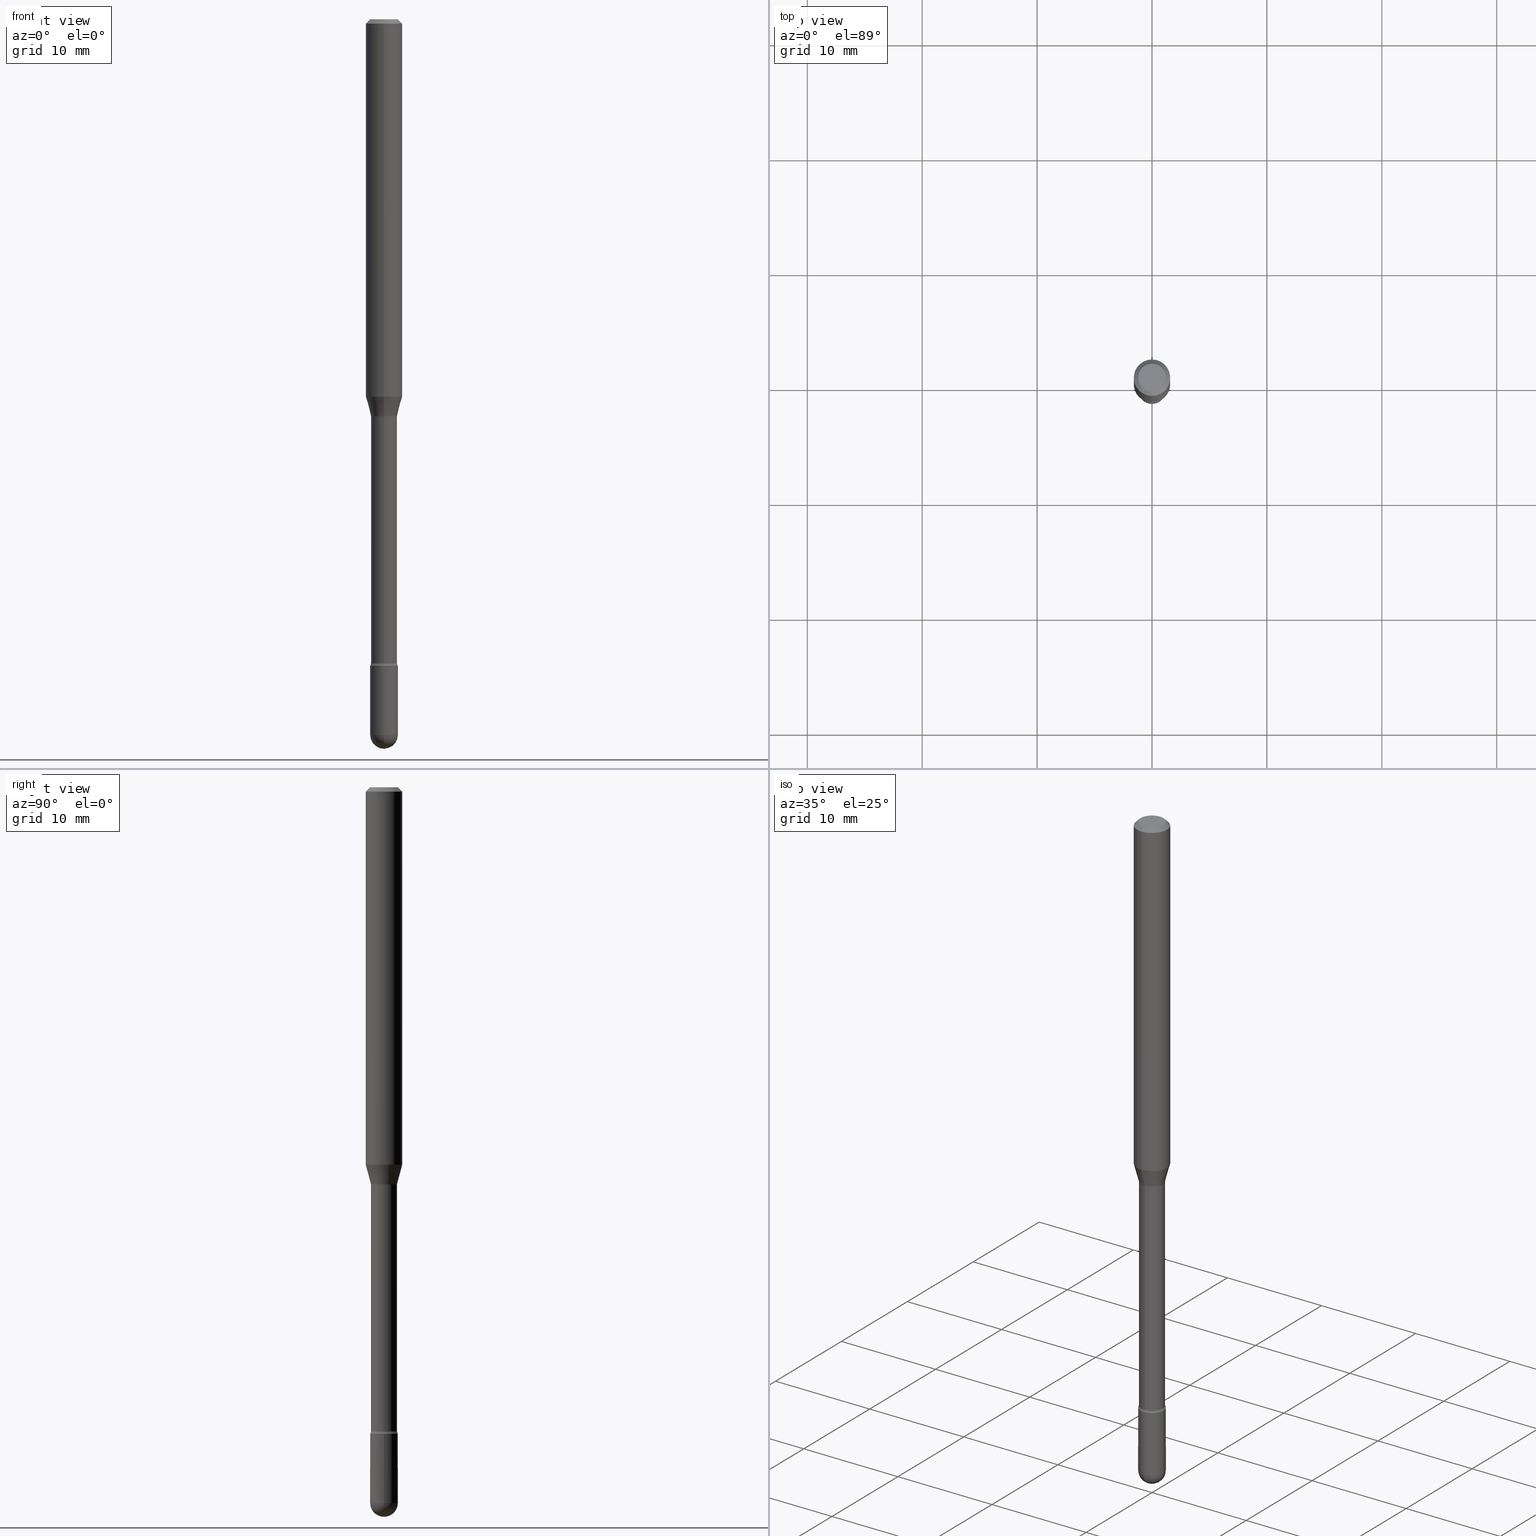
[diagram: canonical four-view strip — front | top / right | iso, engineering-drawing reading convention]
A machine part, canonical four-view strip (front | top / right | iso — engineering-drawing reading convention). The complete STEP part file that produces these views, byte-faithful:
ISO-10303-21;
HEADER;
FILE_DESCRIPTION (( 'STEP AP203' ),
    '1' );
FILE_NAME ('01633.STEP',
    '2024-04-09T20:11:30',
    ( '' ),
    ( '' ),
    'SwSTEP 2.0',
    'SolidWorks 2023',
    '' );
FILE_SCHEMA (( 'CONFIG_CONTROL_DESIGN' ));
ENDSEC;

DATA;
#1 = CARTESIAN_POINT ( 'NONE',  ( 3.208890050080175440E-16, 0.04516111260565924823, -1.358092501787273587 ) ) ;
#2 = ORIENTED_EDGE ( 'NONE', *, *, #251, .F. ) ;
#3 = VERTEX_POINT ( 'NONE', #565 ) ;
#4 = CARTESIAN_POINT ( 'NONE',  ( 3.668209281077304879E-31, -5.237213313102163933E-17, -0.01500000000000008271 ) ) ;
#5 = ORIENTED_EDGE ( 'NONE', *, *, #313, .F. ) ;
#6 = AXIS2_PLACEMENT_3D ( 'NONE', #121, #260, #476 ) ;
#7 = LOCAL_TIME ( 16, 11, 30.00000000000000000, #57 ) ;
#8 = ORIENTED_EDGE ( 'NONE', *, *, #251, .T. ) ;
#9 = PLANE ( 'NONE',  #198 ) ;
#10 = ORIENTED_EDGE ( 'NONE', *, *, #387, .T. ) ;
#11 = CARTESIAN_POINT ( 'NONE',  ( -0.04749999999999999362, -7.810736775039144241E-15, -2.215000000000000302 ) ) ;
#12 = CC_DESIGN_DATE_AND_TIME_ASSIGNMENT ( #456, #462, ( #183 ) ) ;
#13 = DIRECTION ( 'NONE',  ( -2.445472854051523017E-29, 3.491475542068089682E-15, 1.000000000000000000 ) ) ;
#14 = DIRECTION ( 'NONE',  ( -2.445472854051523017E-29, 3.491475542068089682E-15, 1.000000000000000000 ) ) ;
#15 = AXIS2_PLACEMENT_3D ( 'NONE', #157, #110, #241 ) ;
#16 = CONICAL_SURFACE ( 'NONE', #506, 0.06250000000000000000, 0.7853981633974483900 ) ;
#17 =( NAMED_UNIT ( * ) PLANE_ANGLE_UNIT ( ) SI_UNIT ( $, .RADIAN. ) );
#18 = CARTESIAN_POINT ( 'NONE',  ( -4.364351673553597698E-16, -0.06250000000000448253, -1.293382893084895402 ) ) ;
#19 = PERSON_AND_ORGANIZATION ( #294, #391 ) ;
#20 = CARTESIAN_POINT ( 'NONE',  ( 3.172573315168849951E-16, 0.04465000000000004382, 3.221790159379056922E-16 ) ) ;
#21 = APPROVAL_DATE_TIME ( #507, #232 ) ;
#22 = DIRECTION ( 'NONE',  ( -2.445472854051523017E-29, 3.491475542068089682E-15, 1.000000000000000000 ) ) ;
#23 = AXIS2_PLACEMENT_3D ( 'NONE', #528, #139, #320 ) ;
#24 = CLOSED_SHELL ( 'NONE', ( #299, #264, #448, #523, #274, #65, #111, #467, #558, #501, #98, #483, #86, #191 ) ) ;
#25 = AXIS2_PLACEMENT_3D ( 'NONE', #550, #170, #125 ) ;
#26 = AXIS2_PLACEMENT_3D ( 'NONE', #337, #335, #500 ) ;
#27 = SECURITY_CLASSIFICATION_LEVEL ( 'unclassified' ) ;
#28 = CARTESIAN_POINT ( 'NONE',  ( 5.416722371724124336E-29, -7.733618325680820029E-15, -2.215000000000000302 ) ) ;
#29 = PRODUCT_RELATED_PRODUCT_CATEGORY ( 'detail', '', ( #144 ) ) ;
#30 = ORIENTED_EDGE ( 'NONE', *, *, #166, .T. ) ;
#31 = DIRECTION ( 'NONE',  ( -2.445472854051523017E-29, 3.491475542068089682E-15, 1.000000000000000000 ) ) ;
#32 = ADVANCED_FACE ( 'NONE', ( #186 ), #366, .T. ) ;
#33 = FACE_OUTER_BOUND ( 'NONE', #258, .T. ) ;
#34 = ORIENTED_EDGE ( 'NONE', *, *, #330, .T. ) ;
#35 = ORIENTED_EDGE ( 'NONE', *, *, #364, .F. ) ;
#36 = CIRCLE ( 'NONE', #113, 0.04465000000000007851 ) ;
#37 = DIRECTION ( 'NONE',  ( -6.982962677686265922E-15, -1.000000000000000000, 3.491475542068089288E-15 ) ) ;
#38 = ADVANCED_FACE ( 'NONE', ( #488 ), #51, .T. ) ;
#39 = CARTESIAN_POINT ( 'NONE',  ( 5.997512247169047773E-29, -8.562857983512815004E-15, -2.452500000000000124 ) ) ;
#40 = ORIENTED_EDGE ( 'NONE', *, *, #218, .F. ) ;
#41 = ORIENTED_EDGE ( 'NONE', *, *, #427, .F. ) ;
#42 = DIRECTION ( 'NONE',  ( -2.445468806185136597E-29, 3.491481338843145583E-15, 1.000000000000000000 ) ) ;
#43 = ORIENTED_EDGE ( 'NONE', *, *, #399, .T. ) ;
#44 = VECTOR ( 'NONE', #518, 39.37007874015748143 ) ;
#45 = DIRECTION ( 'NONE',  ( 7.105427357601001859E-15, 1.000000000000000000, 0.000000000000000000 ) ) ;
#46 = AXIS2_PLACEMENT_3D ( 'NONE', #487, #322, #37 ) ;
#47 = ORIENTED_EDGE ( 'NONE', *, *, #531, .F. ) ;
#48 = EDGE_CURVE ( 'NONE', #318, #145, #356, .T. ) ;
#49 = ORIENTED_EDGE ( 'NONE', *, *, #339, .F. ) ;
#50 = DIRECTION ( 'NONE',  ( 1.000000000000000000, -7.105427357601001070E-15, 4.926315437552061664E-29 ) ) ;
#51 = CYLINDRICAL_SURFACE ( 'NONE', #100, 0.04750000000000000749 ) ;
#52 = DIRECTION ( 'NONE',  ( 0.000000000000000000, 0.000000000000000000, 1.000000000000000000 ) ) ;
#53 = ORIENTED_EDGE ( 'NONE', *, *, #412, .F. ) ;
#54 = FACE_OUTER_BOUND ( 'NONE', #440, .T. ) ;
#55 = AXIS2_PLACEMENT_3D ( 'NONE', #107, #152, #457 ) ;
#56 = CIRCLE ( 'NONE', #442, 0.04749999999999998668 ) ;
#57 = COORDINATED_UNIVERSAL_TIME_OFFSET ( 5, 0, .BEHIND. ) ;
#58 = EDGE_CURVE ( 'NONE', #171, #81, #311, .T. ) ;
#59 = CARTESIAN_POINT ( 'NONE',  ( 0.000000000000000000, 0.000000000000000000, 0.000000000000000000 ) ) ;
#60 = DIRECTION ( 'NONE',  ( -2.445468806185136597E-29, 3.491481338843145583E-15, 1.000000000000000000 ) ) ;
#61 =( CONVERSION_BASED_UNIT ( 'INCH', #449 ) LENGTH_UNIT ( ) NAMED_UNIT ( #306 ) );
#62 = CARTESIAN_POINT ( 'NONE',  ( 3.316907271901517452E-16, 0.04749999999999226369, -2.215000000000000746 ) ) ;
#63 = CIRCLE ( 'NONE', #189, 0.04465000000000000219 ) ;
#64 = AXIS2_PLACEMENT_3D ( 'NONE', #4, #108, #372 ) ;
#65 = ADVANCED_FACE ( 'NONE', ( #338 ), #178, .T. ) ;
#66 = CARTESIAN_POINT ( 'NONE',  ( 6.115703035399643170E-29, -8.725794810959889951E-15, -2.500000000000000000 ) ) ;
#67 = DIRECTION ( 'NONE',  ( 6.982962677686265922E-15, 1.000000000000000000, -5.751258934030028949E-15 ) ) ;
#68 = DIRECTION ( 'NONE',  ( -6.982962677686266711E-15, -1.000000000000000000, 5.751258934030028949E-15 ) ) ;
#69 = AXIS2_PLACEMENT_3D ( 'NONE', #28, #472, #68 ) ;
#70 = VECTOR ( 'NONE', #138, 39.37007874015748143 ) ;
#71 = PERSON_AND_ORGANIZATION_ROLE ( 'design_supplier' ) ;
#72 = CARTESIAN_POINT ( 'NONE',  ( 5.997512247169047773E-29, -8.562857983512815004E-15, -2.452500000000000124 ) ) ;
#73 = ORIENTED_EDGE ( 'NONE', *, *, #174, .T. ) ;
#74 = DATE_AND_TIME ( #510, #153 ) ;
#75 = CARTESIAN_POINT ( 'NONE',  ( 4.440892098500943678E-16, 0.06249999999999995143, -0.01500000000000030129 ) ) ;
#76 = ORIENTED_EDGE ( 'NONE', *, *, #163, .T. ) ;
#77 = LINE ( 'NONE', #212, #246 ) ;
#78 = CC_DESIGN_PERSON_AND_ORGANIZATION_ASSIGNMENT ( #173, #71, ( #216 ) ) ;
#79 = APPROVAL_PERSON_ORGANIZATION ( #158, #232, #385 ) ;
#80 = DIRECTION ( 'NONE',  ( -2.445472854051523017E-29, 3.491475542068089682E-15, 1.000000000000000000 ) ) ;
#81 = VERTEX_POINT ( 'NONE', #499 ) ;
#82 = DIRECTION ( 'NONE',  ( 2.445472854051522737E-29, -3.491475542068090077E-15, -1.000000000000000000 ) ) ;
#83 = ORIENTED_EDGE ( 'NONE', *, *, #174, .F. ) ;
#84 = ORIENTED_EDGE ( 'NONE', *, *, #420, .F. ) ;
#85 = DIRECTION ( 'NONE',  ( -6.982962677686265922E-15, -1.000000000000000000, 3.491475542068089682E-15 ) ) ;
#86 = ADVANCED_FACE ( 'NONE', ( #54 ), #102, .T. ) ;
#87 = VERTEX_POINT ( 'NONE', #287 ) ;
#88 = ORIENTED_EDGE ( 'NONE', *, *, #323, .T. ) ;
#89 = LINE ( 'NONE', #352, #70 ) ;
#90 = TOROIDAL_SURFACE ( 'NONE', #343, 0.05965000000000009878, 0.01500000000000001853 ) ;
#91 = ORIENTED_EDGE ( 'NONE', *, *, #364, .T. ) ;
#92 = ORIENTED_EDGE ( 'NONE', *, *, #374, .T. ) ;
#93 = CARTESIAN_POINT ( 'NONE',  ( 3.668209281077304879E-31, -5.237213313102163933E-17, -0.01500000000000008271 ) ) ;
#94 = ORIENTED_EDGE ( 'NONE', *, *, #566, .T. ) ;
#95 = PERSON_AND_ORGANIZATION ( #294, #391 ) ;
#96 = CARTESIAN_POINT ( 'NONE',  ( 3.668209281077304879E-31, -5.237213313102163933E-17, -0.01500000000000008271 ) ) ;
#97 = ORIENTED_EDGE ( 'NONE', *, *, #257, .T. ) ;
#98 = ADVANCED_FACE ( 'NONE', ( #238 ), #9, .F. ) ;
#99 = DATE_AND_TIME ( #494, #143 ) ;
#100 = AXIS2_PLACEMENT_3D ( 'NONE', #541, #192, #193 ) ;
#101 = CIRCLE ( 'NONE', #539, 0.01500000000000001853 ) ;
#102 = CYLINDRICAL_SURFACE ( 'NONE', #390, 0.04465000000000004382 ) ;
#103 = ORIENTED_EDGE ( 'NONE', *, *, #531, .T. ) ;
#104 = AXIS2_PLACEMENT_3D ( 'NONE', #285, #249, #422 ) ;
#105 = ORIENTED_EDGE ( 'NONE', *, *, #475, .F. ) ;
#106 = PERSON_AND_ORGANIZATION_ROLE ( 'creator' ) ;
#107 = CARTESIAN_POINT ( 'NONE',  ( 5.395210896568961877E-29, -7.702905742119066904E-15, -2.206203551853163081 ) ) ;
#108 = DIRECTION ( 'NONE',  ( 2.445472854051523017E-29, -3.491475542068089682E-15, -1.000000000000000000 ) ) ;
#109 = MANIFOLD_SOLID_BREP ( 'Body-Move/Copy2[2]', #24 ) ;
#110 = DIRECTION ( 'NONE',  ( -2.445472854051523017E-29, 3.491475542068089682E-15, 1.000000000000000000 ) ) ;
#111 = ADVANCED_FACE ( 'NONE', ( #504 ), #552, .T. ) ;
#112 = CARTESIAN_POINT ( 'NONE',  ( 3.330672370645342847E-29, -4.755301659343282249E-15, -1.361974787463811287 ) ) ;
#113 = AXIS2_PLACEMENT_3D ( 'NONE', #176, #444, #404 ) ;
#114 = VERTEX_POINT ( 'NONE', #11 ) ;
#115 = LOCAL_TIME ( 16, 11, 30.00000000000000000, #473 ) ;
#116 = PERSON_AND_ORGANIZATION_ROLE ( 'classification_officer' ) ;
#117 = EDGE_CURVE ( 'NONE', #466, #447, #254, .T. ) ;
#118 = DIRECTION ( 'NONE',  ( -2.445472854051523017E-29, 3.491475542068089682E-15, 1.000000000000000000 ) ) ;
#119 = ORIENTED_EDGE ( 'NONE', *, *, #154, .T. ) ;
#120 = ORIENTED_EDGE ( 'NONE', *, *, #323, .F. ) ;
#121 = CARTESIAN_POINT ( 'NONE',  ( -4.165337237239525091E-16, -0.05965000000000476171, -1.361974787463811065 ) ) ;
#122 = APPROVAL ( #333, 'UNSPECIFIED' ) ;
#123 = CARTESIAN_POINT ( 'NONE',  ( 0.04749999999999999362, -8.065321892727665188E-15, -2.215000000000000302 ) ) ;
#124 = VECTOR ( 'NONE', #349, 39.37007874015748854 ) ;
#125 = DIRECTION ( 'NONE',  ( -6.982962677686267499E-15, -1.000000000000000000, 0.000000000000000000 ) ) ;
#126 = CARTESIAN_POINT ( 'NONE',  ( 4.440892098500943678E-16, 0.06249999999999551747, -1.293382893084896068 ) ) ;
#127 = APPROVAL ( #292, 'UNSPECIFIED' ) ;
#128 = FACE_OUTER_BOUND ( 'NONE', #396, .T. ) ;
#129 = ORIENTED_EDGE ( 'NONE', *, *, #148, .T. ) ;
#130 = VECTOR ( 'NONE', #281, 39.37007874015748143 ) ;
#131 = AXIS2_PLACEMENT_3D ( 'NONE', #436, #223, #276 ) ;
#132 = DIRECTION ( 'NONE',  ( -6.982962677686265922E-15, -1.000000000000000000, 3.491475542068089682E-15 ) ) ;
#133 = ORIENTED_EDGE ( 'NONE', *, *, #431, .T. ) ;
#134 = EDGE_LOOP ( 'NONE', ( #255, #49 ) ) ;
#135 = EDGE_CURVE ( 'NONE', #145, #3, #371, .T. ) ;
#136 = VERTEX_POINT ( 'NONE', #502 ) ;
#137 = ORIENTED_EDGE ( 'NONE', *, *, #387, .F. ) ;
#138 = DIRECTION ( 'NONE',  ( -2.445468806185136877E-29, 3.491481338843145188E-15, 1.000000000000000000 ) ) ;
#139 = DIRECTION ( 'NONE',  ( -2.445468806185136597E-29, 3.491481338843145583E-15, 1.000000000000000000 ) ) ;
#140 = EDGE_LOOP ( 'NONE', ( #5, #91, #445, #250 ) ) ;
#141 = CIRCLE ( 'NONE', #521, 0.06250000000000000000 ) ;
#142 = CARTESIAN_POINT ( 'NONE',  ( 4.364351673553919652E-16, 0.06249999999999995143, -0.01500000000000030129 ) ) ;
#143 = LOCAL_TIME ( 16, 11, 30.00000000000000000, #498 ) ;
#144 = PRODUCT ( '01633', '01633', '', ( #326 ) ) ;
#145 = VERTEX_POINT ( 'NONE', #18 ) ;
#146 = PERSON_AND_ORGANIZATION ( #294, #391 ) ;
#147 = CARTESIAN_POINT ( 'NONE',  ( 3.273825655015205278E-16, 0.04464999999999237634, -2.206203551853163081 ) ) ;
#148 = EDGE_CURVE ( 'NONE', #526, #136, #424, .T. ) ;
#149 = APPROVAL_ROLE ( '' ) ;
#150 = DIRECTION ( 'NONE',  ( -6.982962677686265922E-15, -1.000000000000000000, 3.483106191921935554E-15 ) ) ;
#151 = APPLICATION_PROTOCOL_DEFINITION ( 'international standard', 'config_control_design', 1994, #529 ) ;
#152 = DIRECTION ( 'NONE',  ( -2.445472854051523017E-29, 3.491475542068089682E-15, 1.000000000000000000 ) ) ;
#153 = LOCAL_TIME ( 16, 11, 30.00000000000000000, #421 ) ;
#154 = EDGE_CURVE ( 'NONE', #275, #3, #141, .T. ) ;
#155 = CARTESIAN_POINT ( 'NONE',  ( -1.169113584055446105E-44, 1.669184350826100908E-30, 4.780733988912460139E-16 ) ) ;
#156 = CARTESIAN_POINT ( 'NONE',  ( 3.824891074290559066E-16, 0.04516111260565924823, -1.358092501787273587 ) ) ;
#157 = CARTESIAN_POINT ( 'NONE',  ( 3.321178346411696933E-29, -4.741746753856328373E-15, -1.358092501787273365 ) ) ;
#158 = PERSON_AND_ORGANIZATION ( #294, #391 ) ;
#159 = DIRECTION ( 'NONE',  ( -2.445472854051523017E-29, 3.491475542068089682E-15, 1.000000000000000000 ) ) ;
#160 = TOROIDAL_SURFACE ( 'NONE', #104, 0.05965000000000000163, 0.01500000000000001853 ) ;
#161 = VERTEX_POINT ( 'NONE', #147 ) ;
#162 = CIRCLE ( 'NONE', #26, 0.04750000000000000749 ) ;
#163 = EDGE_CURVE ( 'NONE', #273, #482, #376, .T. ) ;
#164 = PERSON_AND_ORGANIZATION_ROLE ( 'creator' ) ;
#165 = DIRECTION ( 'NONE',  ( -2.445472854051523017E-29, 3.491475542068089682E-15, 1.000000000000000000 ) ) ;
#166 = EDGE_CURVE ( 'NONE', #145, #318, #441, .T. ) ;
#167 = ORIENTED_EDGE ( 'NONE', *, *, #204, .T. ) ;
#168 = LINE ( 'NONE', #512, #397 ) ;
#169 = CALENDAR_DATE ( 2024, 9, 4 ) ;
#170 = DIRECTION ( 'NONE',  ( -1.000000000000000000, 6.982962677686265922E-15, -4.883557194083112340E-29 ) ) ;
#171 = VERTEX_POINT ( 'NONE', #66 ) ;
#172 = AXIS2_PLACEMENT_3D ( 'NONE', #547, #165, #516 ) ;
#173 = PERSON_AND_ORGANIZATION ( #294, #391 ) ;
#174 = EDGE_CURVE ( 'NONE', #87, #161, #382, .T. ) ;
#175 = DIRECTION ( 'NONE',  ( -6.982962677686265922E-15, -1.000000000000000000, 3.491475542068089288E-15 ) ) ;
#176 = CARTESIAN_POINT ( 'NONE',  ( 5.395210896568961877E-29, -7.702905742119066904E-15, -2.206203551853163081 ) ) ;
#177 = ORIENTED_EDGE ( 'NONE', *, *, #399, .F. ) ;
#178 = CONICAL_SURFACE ( 'NONE', #15, 0.04516111260566398750, 0.2617993877991491303 ) ;
#179 = AXIS2_PLACEMENT_3D ( 'NONE', #393, #82, #265 ) ;
#180 = AXIS2_PLACEMENT_3D ( 'NONE', #240, #415, #377 ) ;
#181 = DIRECTION ( 'NONE',  ( 4.937700262164548042E-15, 0.7071067811865451302, -0.7071067811865499042 ) ) ;
#182 = EDGE_LOOP ( 'NONE', ( #35, #105, #464, #119 ) ) ;
#183 = PRODUCT_DEFINITION ( 'UNKNOWN', '', #216, #280 ) ;
#184 = ORIENTED_EDGE ( 'NONE', *, *, #148, .F. ) ;
#185 = CARTESIAN_POINT ( 'NONE',  ( -0.04750000000000000749, -7.810736775039144241E-15, -2.452500000000000124 ) ) ;
#186 = FACE_OUTER_BOUND ( 'NONE', #486, .T. ) ;
#187 = DIRECTION ( 'NONE',  ( -2.445472854051523017E-29, 3.491475542068089682E-15, 1.000000000000000000 ) ) ;
#188 = ORIENTED_EDGE ( 'NONE', *, *, #402, .T. ) ;
#189 = AXIS2_PLACEMENT_3D ( 'NONE', #389, #31, #548 ) ;
#190 =( NAMED_UNIT ( * ) SI_UNIT ( $, .STERADIAN. ) SOLID_ANGLE_UNIT ( ) );
#191 = ADVANCED_FACE ( 'NONE', ( #414 ), #160, .F. ) ;
#192 = DIRECTION ( 'NONE',  ( -2.445468806185136597E-29, 3.491481338843145583E-15, 1.000000000000000000 ) ) ;
#193 = DIRECTION ( 'NONE',  ( 1.000000000000000000, -6.982962677686266711E-15, 4.876176775795934672E-29 ) ) ;
#194 = DIRECTION ( 'NONE',  ( 6.982962677686265922E-15, 1.000000000000000000, -3.483106191921935554E-15 ) ) ;
#195 = CARTESIAN_POINT ( 'NONE',  ( 3.321178346411696933E-29, -4.741746753856328373E-15, -1.358092501787273365 ) ) ;
#196 = CC_DESIGN_PERSON_AND_ORGANIZATION_ASSIGNMENT ( #453, #106, ( #183 ) ) ;
#197 = CARTESIAN_POINT ( 'NONE',  ( 3.321178346411696933E-29, -4.741746753856328373E-15, -1.358092501787273365 ) ) ;
#198 = AXIS2_PLACEMENT_3D ( 'NONE', #62, #450, #463 ) ;
#199 = CARTESIAN_POINT ( 'NONE',  ( 5.997512247169047773E-29, -8.562857983512815004E-15, -2.452500000000000124 ) ) ;
#200 = DIRECTION ( 'NONE',  ( -2.445472854051523017E-29, 3.491475542068089682E-15, 1.000000000000000000 ) ) ;
#201 = APPROVAL_DATE_TIME ( #74, #127 ) ;
#202 = DIRECTION ( 'NONE',  ( -2.445468806185136877E-29, 3.491481338843145188E-15, 1.000000000000000000 ) ) ;
#203 = DIRECTION ( 'NONE',  ( -1.000000000000000000, 6.982962677686265922E-15, -4.883557194083112340E-29 ) ) ;
#204 = EDGE_CURVE ( 'NONE', #368, #114, #451, .T. ) ;
#205 = AXIS2_PLACEMENT_3D ( 'NONE', #428, #203, #67 ) ;
#206 = ORIENTED_EDGE ( 'NONE', *, *, #403, .F. ) ;
#207 = CC_DESIGN_SECURITY_CLASSIFICATION ( #360, ( #216 ) ) ;
#208 = CARTESIAN_POINT ( 'NONE',  ( -3.773273898774340269E-16, -0.04749999999999999362, 8.309778082987376122E-17 ) ) ;
#209 = VERTEX_POINT ( 'NONE', #416 ) ;
#210 = CARTESIAN_POINT ( 'NONE',  ( 5.416722371724124336E-29, -7.733618325680820029E-15, -2.215000000000000302 ) ) ;
#211 = PERSON_AND_ORGANIZATION ( #294, #391 ) ;
#212 = CARTESIAN_POINT ( 'NONE',  ( -0.04750000000000000749, 3.375077994860476415E-16, -2.336494167871080260E-30 ) ) ;
#213 = ORIENTED_EDGE ( 'NONE', *, *, #166, .F. ) ;
#214 = AXIS2_PLACEMENT_3D ( 'NONE', #112, #200, #535 ) ;
#215 = ORIENTED_EDGE ( 'NONE', *, *, #549, .T. ) ;
#216 = PRODUCT_DEFINITION_FORMATION_WITH_SPECIFIED_SOURCE ( 'ANY', '', #144, .NOT_KNOWN. ) ;
#217 = CYLINDRICAL_SURFACE ( 'NONE', #46, 0.06250000000000000000 ) ;
#218 = EDGE_CURVE ( 'NONE', #526, #447, #341, .T. ) ;
#219 = EDGE_LOOP ( 'NONE', ( #167, #443 ) ) ;
#220 = ORIENTED_EDGE ( 'NONE', *, *, #154, .F. ) ;
#221 = CARTESIAN_POINT ( 'NONE',  ( 5.997512247169047773E-29, -8.562857983512815004E-15, -2.452500000000000124 ) ) ;
#222 = ORIENTED_EDGE ( 'NONE', *, *, #412, .T. ) ;
#223 = DIRECTION ( 'NONE',  ( -2.438088387897960049E-29, 3.491481338843145188E-15, 1.000000000000000000 ) ) ;
#224 = ORIENTED_EDGE ( 'NONE', *, *, #48, .F. ) ;
#225 = CC_DESIGN_PERSON_AND_ORGANIZATION_ASSIGNMENT ( #95, #411, ( #144 ) ) ;
#226 = TOROIDAL_SURFACE ( 'NONE', #560, 0.05965000000000000163, 0.01500000000000001853 ) ;
#227 = PLANE ( 'NONE',  #179 ) ;
#228 = ORIENTED_EDGE ( 'NONE', *, *, #475, .T. ) ;
#229 = VERTEX_POINT ( 'NONE', #208 ) ;
#230 = CARTESIAN_POINT ( 'NONE',  ( 2.023582292146984520E-45, -2.889074287392415755E-31, -8.274730741836049425E-17 ) ) ;
#231 = ORIENTED_EDGE ( 'NONE', *, *, #330, .F. ) ;
#232 = APPROVAL ( #468, 'UNSPECIFIED' ) ;
#233 = CARTESIAN_POINT ( 'NONE',  ( 3.668209281077304879E-31, -5.237213313102163933E-17, -0.01500000000000008271 ) ) ;
#234 = EDGE_LOOP ( 'NONE', ( #519, #480, #177, #263 ) ) ;
#235 = AXIS2_PLACEMENT_3D ( 'NONE', #469, #300, #543 ) ;
#236 = DIRECTION ( 'NONE',  ( 1.000000000000000000, 0.000000000000000000, 0.000000000000000000 ) ) ;
#237 = CIRCLE ( 'NONE', #180, 0.04749999999999999362 ) ;
#238 = FACE_OUTER_BOUND ( 'NONE', #134, .T. ) ;
#239 = ADVANCED_FACE ( 'NONE', ( #511 ), #386, .T. ) ;
#240 = CARTESIAN_POINT ( 'NONE',  ( 5.416713405700078055E-29, -7.733631165537568465E-15, -2.215000000000000302 ) ) ;
#241 = DIRECTION ( 'NONE',  ( -6.982962677686266711E-15, -1.000000000000000000, 6.049115790211160649E-15 ) ) ;
#242 = CC_DESIGN_DATE_AND_TIME_ASSIGNMENT ( #340, #344, ( #360 ) ) ;
#243 = FACE_OUTER_BOUND ( 'NONE', #140, .T. ) ;
#244 = DIRECTION ( 'NONE',  ( 1.000000000000000000, -6.982962677686261977E-15, 0.000000000000000000 ) ) ;
#245 = DIRECTION ( 'NONE',  ( -6.982962677686266711E-15, -1.000000000000000000, 6.049115790211160649E-15 ) ) ;
#246 = VECTOR ( 'NONE', #202, 39.37007874015748143 ) ;
#247 = DIRECTION ( 'NONE',  ( -2.445472854051523017E-29, 3.491475542068089682E-15, 1.000000000000000000 ) ) ;
#248 = APPROVAL_ROLE ( '' ) ;
#249 = DIRECTION ( 'NONE',  ( -2.445472854051523017E-29, 3.491475542068089682E-15, 1.000000000000000000 ) ) ;
#250 = ORIENTED_EDGE ( 'NONE', *, *, #492, .F. ) ;
#251 = EDGE_CURVE ( 'NONE', #447, #466, #63, .T. ) ;
#252 = DIRECTION ( 'NONE',  ( -6.982962677686266711E-15, -1.000000000000000000, 5.751258934030028949E-15 ) ) ;
#253 = CYLINDRICAL_SURFACE ( 'NONE', #496, 0.06250000000000000000 ) ;
#254 = CIRCLE ( 'NONE', #214, 0.04465000000000000219 ) ;
#255 = ORIENTED_EDGE ( 'NONE', *, *, #291, .F. ) ;
#256 = DIRECTION ( 'NONE',  ( -2.445468806185136597E-29, 3.491481338843145583E-15, 1.000000000000000000 ) ) ;
#257 = EDGE_CURVE ( 'NONE', #136, #145, #381, .T. ) ;
#258 = EDGE_LOOP ( 'NONE', ( #30, #295, #41, #304 ) ) ;
#259 = PERSON_AND_ORGANIZATION ( #294, #391 ) ;
#260 = DIRECTION ( 'NONE',  ( -1.000000000000000000, 6.982962677686265922E-15, -4.883557194083112340E-29 ) ) ;
#261 = CIRCLE ( 'NONE', #172, 0.04749999999999999362 ) ;
#262 = CARTESIAN_POINT ( 'NONE',  ( 4.440892098500625669E-16, 0.06250000000000000000, 2.598561775119904334E-16 ) ) ;
#263 = ORIENTED_EDGE ( 'NONE', *, *, #163, .F. ) ;
#264 = ADVANCED_FACE ( 'NONE', ( #474 ), #508, .T. ) ;
#265 = DIRECTION ( 'NONE',  ( 6.982962677686265922E-15, 1.000000000000000000, -3.491475542068090077E-15 ) ) ;
#266 = ORIENTED_EDGE ( 'NONE', *, *, #284, .F. ) ;
#267 = VERTEX_POINT ( 'NONE', #305 ) ;
#268 = SPHERICAL_SURFACE ( 'NONE', #369, 0.04749999999999998668 ) ;
#269 = EDGE_LOOP ( 'NONE', ( #76, #34, #401, #53, #92 ) ) ;
#270 = AXIS2_PLACEMENT_3D ( 'NONE', #289, #60, #244 ) ;
#271 = CIRCLE ( 'NONE', #545, 0.06250000000000000000 ) ;
#272 = CARTESIAN_POINT ( 'NONE',  ( -3.117892835586584493E-16, -0.04465000000000475533, -1.361974787463811065 ) ) ;
#273 = VERTEX_POINT ( 'NONE', #554 ) ;
#274 = ADVANCED_FACE ( 'NONE', ( #33 ), #253, .T. ) ;
#275 = VERTEX_POINT ( 'NONE', #75 ) ;
#276 = DIRECTION ( 'NONE',  ( 1.000000000000000000, -6.982962677686265922E-15, 4.876176775795935793E-29 ) ) ;
#277 = DIRECTION ( 'NONE',  ( 1.000000000000000000, -6.982962677686280910E-15, 0.000000000000000000 ) ) ;
#278 = VECTOR ( 'NONE', #430, 39.37007874015748143 ) ;
#279 = APPROVAL_DATE_TIME ( #99, #122 ) ;
#280 = DESIGN_CONTEXT ( 'detailed design', #310, 'design' ) ;
#281 = DIRECTION ( 'NONE',  ( -2.445472854051522737E-29, 3.491475542068090077E-15, 1.000000000000000000 ) ) ;
#282 = ORIENTED_EDGE ( 'NONE', *, *, #48, .T. ) ;
#283 = CALENDAR_DATE ( 2024, 9, 4 ) ;
#284 = EDGE_CURVE ( 'NONE', #161, #447, #465, .T. ) ;
#285 = CARTESIAN_POINT ( 'NONE',  ( 3.330666857553381436E-29, -4.755309554404755969E-15, -1.361974787463811287 ) ) ;
#286 = DIRECTION ( 'NONE',  ( 2.445472854051523017E-29, -3.491475542068089682E-15, -1.000000000000000000 ) ) ;
#287 = CARTESIAN_POINT ( 'NONE',  ( -3.117892835586383826E-16, -0.04465000000000778069, -2.206203551853162637 ) ) ;
#288 = AXIS2_PLACEMENT_3D ( 'NONE', #72, #256, #388 ) ;
#289 = CARTESIAN_POINT ( 'NONE',  ( 5.416713405700078055E-29, -7.733631165537568465E-15, -2.215000000000000302 ) ) ;
#290 = APPROVAL_PERSON_ORGANIZATION ( #211, #127, #248 ) ;
#291 = EDGE_CURVE ( 'NONE', #267, #363, #544, .T. ) ;
#292 = APPROVAL_STATUS ( 'not_yet_approved' ) ;
#293 = CARTESIAN_POINT ( 'NONE',  ( 4.238387418809330525E-16, 0.05964999999999524849, -1.361974787463811509 ) ) ;
#294 = PERSON ( 'UNSPECIFIED', 'UNSPECIFIED', 'UNSPECIFIED', ('UNSPECIFIED'), ('UNSPECIFIED'), ('UNSPECIFIED') ) ;
#295 = ORIENTED_EDGE ( 'NONE', *, *, #403, .T. ) ;
#296 = ORIENTED_EDGE ( 'NONE', *, *, #374, .F. ) ;
#297 = CARTESIAN_POINT ( 'NONE',  ( 3.375077994861017278E-16, 0.04749999999999229144, -2.215000000000000746 ) ) ;
#298 = EDGE_LOOP ( 'NONE', ( #94, #362, #213, #522 ) ) ;
#299 = ADVANCED_FACE ( 'NONE', ( #423 ), #226, .F. ) ;
#300 = DIRECTION ( 'NONE',  ( -2.445472854051523017E-29, 3.491475542068089682E-15, 1.000000000000000000 ) ) ;
#301 = AXIS2_PLACEMENT_3D ( 'NONE', #336, #247, #538 ) ;
#302 = MANIFOLD_SOLID_BREP ( 'Body-Move/Copy2[1]', #439 ) ;
#303 = VECTOR ( 'NONE', #540, 39.37007874015748143 ) ;
#304 = ORIENTED_EDGE ( 'NONE', *, *, #135, .F. ) ;
#305 = CARTESIAN_POINT ( 'NONE',  ( -3.316907271900436219E-16, -0.04750000000000775130, -2.214999999999999858 ) ) ;
#306 = DIMENSIONAL_EXPONENTS ( 1.000000000000000000, 0.000000000000000000, 0.000000000000000000, 0.000000000000000000, 0.000000000000000000, 0.000000000000000000, 0.000000000000000000 ) ;
#307 = DIRECTION ( 'NONE',  ( 1.000000000000000000, -7.105427357601001070E-15, 4.926315437552061664E-29 ) ) ;
#308 = FACE_OUTER_BOUND ( 'NONE', #219, .T. ) ;
#309 = ORIENTED_EDGE ( 'NONE', *, *, #117, .F. ) ;
#310 = APPLICATION_CONTEXT ( 'configuration controlled 3d designs of mechanical parts and assemblies' ) ;
#311 = CIRCLE ( 'NONE', #513, 0.04749999999999998668 ) ;
#312 = TOROIDAL_SURFACE ( 'NONE', #418, 0.05965000000000009878, 0.01500000000000001853 ) ;
#313 = EDGE_CURVE ( 'NONE', #229, #437, #261, .T. ) ;
#314 = FACE_OUTER_BOUND ( 'NONE', #525, .T. ) ;
#315 = ORIENTED_EDGE ( 'NONE', *, *, #313, .T. ) ;
#316 = DIRECTION ( 'NONE',  ( 1.839019923739592427E-15, 0.2588190451025238481, 0.9659258262890675351 ) ) ;
#317 = ORIENTED_EDGE ( 'NONE', *, *, #402, .F. ) ;
#318 = VERTEX_POINT ( 'NONE', #126 ) ;
#319 = DIRECTION ( 'NONE',  ( 6.982962677686265922E-15, 1.000000000000000000, -5.751258934030028949E-15 ) ) ;
#320 = DIRECTION ( 'NONE',  ( 1.000000000000000000, -6.982962677686266711E-15, 4.876176775795934672E-29 ) ) ;
#321 = CIRCLE ( 'NONE', #288, 0.04750000000000000749 ) ;
#322 = DIRECTION ( 'NONE',  ( -2.445472854051523017E-29, 3.491475542068089682E-15, 1.000000000000000000 ) ) ;
#323 = EDGE_CURVE ( 'NONE', #136, #466, #331, .T. ) ;
#324 = ORIENTED_EDGE ( 'NONE', *, *, #379, .F. ) ;
#325 = ADVANCED_BREP_SHAPE_REPRESENTATION ( '01633', ( #302, #109, #553 ), #398 ) ;
#326 = MECHANICAL_CONTEXT ( 'NONE', #529, 'mechanical' ) ;
#327 = DIRECTION ( 'NONE',  ( -2.445468806185136597E-29, 3.491481338843145583E-15, 1.000000000000000000 ) ) ;
#328 = FACE_OUTER_BOUND ( 'NONE', #182, .T. ) ;
#329 = DIRECTION ( 'NONE',  ( -6.982962677686266711E-15, -1.000000000000000000, 6.049115790211160649E-15 ) ) ;
#330 = EDGE_CURVE ( 'NONE', #482, #114, #77, .T. ) ;
#331 = CIRCLE ( 'NONE', #6, 0.01500000000000001853 ) ;
#332 = CIRCLE ( 'NONE', #425, 0.04749999999999999362 ) ;
#333 = APPROVAL_STATUS ( 'not_yet_approved' ) ;
#334 = DIRECTION ( 'NONE',  ( -7.105427357601001070E-15, -1.000000000000000000, 0.000000000000000000 ) ) ;
#335 = DIRECTION ( 'NONE',  ( -2.445468806185136597E-29, 3.491481338843145583E-15, 1.000000000000000000 ) ) ;
#336 = CARTESIAN_POINT ( 'NONE',  ( 3.321178346411696933E-29, -4.741746753856328373E-15, -1.358092501787273365 ) ) ;
#337 = CARTESIAN_POINT ( 'NONE',  ( 5.997512247169047773E-29, -8.562857983512815004E-15, -2.452500000000000124 ) ) ;
#338 = FACE_OUTER_BOUND ( 'NONE', #298, .T. ) ;
#339 = EDGE_CURVE ( 'NONE', #363, #267, #409, .T. ) ;
#340 = DATE_AND_TIME ( #546, #115 ) ;
#341 = CIRCLE ( 'NONE', #350, 0.01500000000000001853 ) ;
#342 = DIRECTION ( 'NONE',  ( 7.105427357601001859E-15, 1.000000000000000000, 0.000000000000000000 ) ) ;
#343 = AXIS2_PLACEMENT_3D ( 'NONE', #355, #432, #132 ) ;
#344 = DATE_TIME_ROLE ( 'classification_date' ) ;
#345 = CARTESIAN_POINT ( 'NONE',  ( -1.169113584055446105E-44, 1.669184350826100908E-30, 4.780733988912460139E-16 ) ) ;
#346 = ORIENTED_EDGE ( 'NONE', *, *, #135, .T. ) ;
#347 = CC_DESIGN_PERSON_AND_ORGANIZATION_ASSIGNMENT ( #259, #164, ( #216 ) ) ;
#348 = DIRECTION ( 'NONE',  ( -4.851104656540964275E-15, -0.7071067811865500152, -0.7071067811865450192 ) ) ;
#349 = DIRECTION ( 'NONE',  ( -1.807323732225322645E-15, -0.2588190451025170757, 0.9659258262890693114 ) ) ;
#350 = AXIS2_PLACEMENT_3D ( 'NONE', #293, #307, #342 ) ;
#351 = APPROVAL_PERSON_ORGANIZATION ( #146, #122, #149 ) ;
#352 = CARTESIAN_POINT ( 'NONE',  ( 0.04750000000000000749, -3.316907271900977082E-16, 2.316183968503069432E-30 ) ) ;
#353 = ORIENTED_EDGE ( 'NONE', *, *, #339, .T. ) ;
#354 = ORIENTED_EDGE ( 'NONE', *, *, #218, .T. ) ;
#355 = CARTESIAN_POINT ( 'NONE',  ( 5.395201966151762718E-29, -7.702918530984785172E-15, -2.206203551853163081 ) ) ;
#356 = CIRCLE ( 'NONE', #433, 0.06250000000000000000 ) ;
#357 = ORIENTED_EDGE ( 'NONE', *, *, #559, .F. ) ;
#358 = AXIS2_PLACEMENT_3D ( 'NONE', #438, #42, #490 ) ;
#359 = CIRCLE ( 'NONE', #358, 0.04750000000000000749 ) ;
#360 = SECURITY_CLASSIFICATION ( '', '', #27 ) ;
#361 = DIRECTION ( 'NONE',  ( 1.000000000000000000, -6.982962677686265922E-15, 4.883557194083112340E-29 ) ) ;
#362 = ORIENTED_EDGE ( 'NONE', *, *, #420, .T. ) ;
#363 = VERTEX_POINT ( 'NONE', #297 ) ;
#364 = EDGE_CURVE ( 'NONE', #229, #3, #168, .T. ) ;
#365 = LINE ( 'NONE', #142, #384 ) ;
#366 = CYLINDRICAL_SURFACE ( 'NONE', #23, 0.04750000000000000749 ) ;
#367 = DIRECTION ( 'NONE',  ( -6.982962677686266711E-15, -1.000000000000000000, 3.491475542068089682E-15 ) ) ;
#368 = VERTEX_POINT ( 'NONE', #123 ) ;
#369 = AXIS2_PLACEMENT_3D ( 'NONE', #39, #477, #319 ) ;
#370 = PRODUCT_DEFINITION_SHAPE ( 'NONE', 'NONE',  #183 ) ;
#371 = LINE ( 'NONE', #419, #130 ) ;
#372 = DIRECTION ( 'NONE',  ( 6.982962677686265922E-15, 1.000000000000000000, -3.483106191921935554E-15 ) ) ;
#373 = DIRECTION ( 'NONE',  ( -2.445472854051523017E-29, 3.491475542068089682E-15, 1.000000000000000000 ) ) ;
#374 = EDGE_CURVE ( 'NONE', #209, #273, #321, .T. ) ;
#375 = DIRECTION ( 'NONE',  ( -6.982962677686265922E-15, -1.000000000000000000, 4.370956789862821150E-15 ) ) ;
#376 = CIRCLE ( 'NONE', #471, 0.04750000000000000749 ) ;
#377 = DIRECTION ( 'NONE',  ( 1.000000000000000000, -6.982962677686261977E-15, 0.000000000000000000 ) ) ;
#378 = DIRECTION ( 'NONE',  ( -2.445472854051523017E-29, 3.491475542068089682E-15, 1.000000000000000000 ) ) ;
#379 = EDGE_CURVE ( 'NONE', #87, #267, #505, .T. ) ;
#380 = CARTESIAN_POINT ( 'NONE',  ( 3.162932754933736035E-29, -4.515814737735180581E-15, -1.293382893084895846 ) ) ;
#381 = LINE ( 'NONE', #383, #124 ) ;
#382 = CIRCLE ( 'NONE', #55, 0.04465000000000007851 ) ;
#383 = CARTESIAN_POINT ( 'NONE',  ( -3.153583638081051864E-16, -0.04516111260566872676, -1.358092501787273143 ) ) ;
#384 = VECTOR ( 'NONE', #181, 39.37007874015748143 ) ;
#385 = APPROVAL_ROLE ( '' ) ;
#386 = SPHERICAL_SURFACE ( 'NONE', #205, 0.04749999999999998668 ) ;
#387 = EDGE_CURVE ( 'NONE', #161, #87, #36, .T. ) ;
#388 = DIRECTION ( 'NONE',  ( 1.000000000000000000, -6.982962677686280910E-15, 0.000000000000000000 ) ) ;
#389 = CARTESIAN_POINT ( 'NONE',  ( 3.330672370645342847E-29, -4.755301659343282249E-15, -1.361974787463811287 ) ) ;
#390 = AXIS2_PLACEMENT_3D ( 'NONE', #155, #493, #495 ) ;
#391 = ORGANIZATION ( 'UNSPECIFIED', 'UNSPECIFIED', '' ) ;
#392 = ADVANCED_FACE ( 'NONE', ( #520 ), #268, .T. ) ;
#393 = CARTESIAN_POINT ( 'NONE',  ( 3.316907271900976096E-16, 0.04749999999999999362, 3.181795748820849820E-17 ) ) ;
#394 = ORIENTED_EDGE ( 'NONE', *, *, #566, .F. ) ;
#395 = DIRECTION ( 'NONE',  ( 6.982962677686265133E-15, 1.000000000000000000, 0.000000000000000000 ) ) ;
#396 = EDGE_LOOP ( 'NONE', ( #228, #315 ) ) ;
#397 = VECTOR ( 'NONE', #348, 39.37007874015748143 ) ;
#398 =( GEOMETRIC_REPRESENTATION_CONTEXT ( 3 ) GLOBAL_UNCERTAINTY_ASSIGNED_CONTEXT ( ( #407 ) ) GLOBAL_UNIT_ASSIGNED_CONTEXT ( ( #61, #17, #190 ) ) REPRESENTATION_CONTEXT ( 'NONE', 'WORKASPACE' ) );
#399 = EDGE_CURVE ( 'NONE', #482, #81, #359, .T. ) ;
#400 = CARTESIAN_POINT ( 'NONE',  ( 3.840629472727447874E-16, 0.04749999999999999362, -2.485923956665947374E-16 ) ) ;
#401 = ORIENTED_EDGE ( 'NONE', *, *, #204, .F. ) ;
#402 = EDGE_CURVE ( 'NONE', #161, #363, #101, .T. ) ;
#403 = EDGE_CURVE ( 'NONE', #318, #275, #434, .T. ) ;
#404 = DIRECTION ( 'NONE',  ( -6.982962677686265922E-15, -1.000000000000000000, 6.118360568117040476E-15 ) ) ;
#405 = EDGE_LOOP ( 'NONE', ( #317, #83, #551, #406 ) ) ;
#406 = ORIENTED_EDGE ( 'NONE', *, *, #291, .T. ) ;
#407 = UNCERTAINTY_MEASURE_WITH_UNIT (LENGTH_MEASURE( 1.000000000000000082E-05 ), #61, 'distance_accuracy_value', 'NONE');
#408 = EDGE_LOOP ( 'NONE', ( #455, #133, #296, #47 ) ) ;
#409 = CIRCLE ( 'NONE', #69, 0.04749999999999999362 ) ;
#410 = CC_DESIGN_APPROVAL ( #127, ( #360 ) ) ;
#411 = PERSON_AND_ORGANIZATION_ROLE ( 'design_owner' ) ;
#412 = EDGE_CURVE ( 'NONE', #209, #368, #89, .T. ) ;
#413 = CARTESIAN_POINT ( 'NONE',  ( 5.997512247169047773E-29, -8.562857983512815004E-15, -2.452500000000000124 ) ) ;
#414 = FACE_OUTER_BOUND ( 'NONE', #489, .T. ) ;
#415 = DIRECTION ( 'NONE',  ( -2.445468806185136597E-29, 3.491481338843145583E-15, 1.000000000000000000 ) ) ;
#416 = CARTESIAN_POINT ( 'NONE',  ( 0.04750000000000000749, -8.479935301715289246E-15, -2.452500000000000124 ) ) ;
#417 = AXIS2_PLACEMENT_3D ( 'NONE', #210, #118, #252 ) ;
#418 = AXIS2_PLACEMENT_3D ( 'NONE', #561, #481, #85 ) ;
#419 = CARTESIAN_POINT ( 'NONE',  ( -4.364351673553916201E-16, -0.06250000000000000000, 6.962906202705015944E-16 ) ) ;
#420 = EDGE_CURVE ( 'NONE', #526, #318, #524, .T. ) ;
#421 = COORDINATED_UNIVERSAL_TIME_OFFSET ( 5, 0, .BEHIND. ) ;
#422 = DIRECTION ( 'NONE',  ( -6.982962677686265922E-15, -1.000000000000000000, 3.491475542068089682E-15 ) ) ;
#423 = FACE_OUTER_BOUND ( 'NONE', #557, .T. ) ;
#424 = CIRCLE ( 'NONE', #460, 0.04516111260566398750 ) ;
#425 = AXIS2_PLACEMENT_3D ( 'NONE', #230, #187, #367 ) ;
#426 = DIRECTION ( 'NONE',  ( -6.982962677686265922E-15, -1.000000000000000000, 3.491475542068089682E-15 ) ) ;
#427 = EDGE_CURVE ( 'NONE', #3, #275, #271, .T. ) ;
#428 = CARTESIAN_POINT ( 'NONE',  ( 5.997512247169047773E-29, -8.562857983512815004E-15, -2.452500000000000124 ) ) ;
#429 = COORDINATED_UNIVERSAL_TIME_OFFSET ( 5, 0, .BEHIND. ) ;
#430 = DIRECTION ( 'NONE',  ( -2.445472854051522737E-29, 3.491475542068090077E-15, 1.000000000000000000 ) ) ;
#431 = EDGE_CURVE ( 'NONE', #171, #273, #56, .T. ) ;
#432 = DIRECTION ( 'NONE',  ( -2.445472854051523017E-29, 3.491475542068089682E-15, 1.000000000000000000 ) ) ;
#433 = AXIS2_PLACEMENT_3D ( 'NONE', #542, #14, #375 ) ;
#434 = LINE ( 'NONE', #262, #44 ) ;
#435 = ORIENTED_EDGE ( 'NONE', *, *, #549, .F. ) ;
#436 = CARTESIAN_POINT ( 'NONE',  ( 5.416713405700078055E-29, -7.733631165537568465E-15, -2.215000000000000302 ) ) ;
#437 = VERTEX_POINT ( 'NONE', #400 ) ;
#438 = CARTESIAN_POINT ( 'NONE',  ( 5.997512247169047773E-29, -8.562857983512815004E-15, -2.452500000000000124 ) ) ;
#439 = CLOSED_SHELL ( 'NONE', ( #38, #392, #509, #239, #32 ) ) ;
#440 = EDGE_LOOP ( 'NONE', ( #266, #10, #215, #2 ) ) ;
#441 = CIRCLE ( 'NONE', #533, 0.06250000000000000000 ) ;
#442 = AXIS2_PLACEMENT_3D ( 'NONE', #221, #361, #395 ) ;
#443 = ORIENTED_EDGE ( 'NONE', *, *, #559, .T. ) ;
#444 = DIRECTION ( 'NONE',  ( -2.445472854051523017E-29, 3.491475542068089682E-15, 1.000000000000000000 ) ) ;
#445 = ORIENTED_EDGE ( 'NONE', *, *, #427, .T. ) ;
#446 = APPLICATION_PROTOCOL_DEFINITION ( 'international standard', 'config_control_design', 1994, #310 ) ;
#447 = VERTEX_POINT ( 'NONE', #484 ) ;
#448 = ADVANCED_FACE ( 'NONE', ( #564 ), #90, .F. ) ;
#449 = LENGTH_MEASURE_WITH_UNIT ( LENGTH_MEASURE( 0.02539999999999999897 ), #503 );
#450 = DIRECTION ( 'NONE',  ( -2.445472854051522737E-29, 3.491475542068090077E-15, 1.000000000000000000 ) ) ;
#451 = CIRCLE ( 'NONE', #270, 0.04749999999999999362 ) ;
#452 = LOCAL_TIME ( 16, 11, 30.00000000000000000, #429 ) ;
#453 = PERSON_AND_ORGANIZATION ( #294, #391 ) ;
#454 = DIRECTION ( 'NONE',  ( -6.982962677686265922E-15, -1.000000000000000000, 4.370956789862821150E-15 ) ) ;
#455 = ORIENTED_EDGE ( 'NONE', *, *, #58, .F. ) ;
#456 = DATE_AND_TIME ( #283, #7 ) ;
#457 = DIRECTION ( 'NONE',  ( -6.982962677686265922E-15, -1.000000000000000000, 6.118360568117040476E-15 ) ) ;
#458 = LINE ( 'NONE', #536, #303 ) ;
#459 = DIRECTION ( 'NONE',  ( -1.000000000000000000, 7.105427357601001070E-15, -4.926315508542082329E-29 ) ) ;
#460 = AXIS2_PLACEMENT_3D ( 'NONE', #195, #537, #329 ) ;
#461 = CC_DESIGN_APPROVAL ( #122, ( #183 ) ) ;
#462 = DATE_TIME_ROLE ( 'creation_date' ) ;
#463 = DIRECTION ( 'NONE',  ( -6.982962677686265922E-15, -1.000000000000000000, 3.491475542068090077E-15 ) ) ;
#464 = ORIENTED_EDGE ( 'NONE', *, *, #492, .T. ) ;
#465 = LINE ( 'NONE', #20, #278 ) ;
#466 = VERTEX_POINT ( 'NONE', #272 ) ;
#467 = ADVANCED_FACE ( 'NONE', ( #314 ), #217, .T. ) ;
#468 = APPROVAL_STATUS ( 'not_yet_approved' ) ;
#469 = CARTESIAN_POINT ( 'NONE',  ( -1.169113584055446105E-44, 1.669184350826100908E-30, 4.780733988912460139E-16 ) ) ;
#470 = SHAPE_DEFINITION_REPRESENTATION ( #370, #325 ) ;
#471 = AXIS2_PLACEMENT_3D ( 'NONE', #413, #327, #277 ) ;
#472 = DIRECTION ( 'NONE',  ( -2.445472854051523017E-29, 3.491475542068089682E-15, 1.000000000000000000 ) ) ;
#473 = COORDINATED_UNIVERSAL_TIME_OFFSET ( 5, 0, .BEHIND. ) ;
#474 = FACE_OUTER_BOUND ( 'NONE', #532, .T. ) ;
#475 = EDGE_CURVE ( 'NONE', #437, #229, #332, .T. ) ;
#476 = DIRECTION ( 'NONE',  ( -6.982962677686267499E-15, -1.000000000000000000, 0.000000000000000000 ) ) ;
#477 = DIRECTION ( 'NONE',  ( -1.000000000000000000, 6.982962677686265922E-15, -4.883557194083112340E-29 ) ) ;
#478 = ORIENTED_EDGE ( 'NONE', *, *, #117, .T. ) ;
#479 = AXIS2_PLACEMENT_3D ( 'NONE', #197, #13, #245 ) ;
#480 = ORIENTED_EDGE ( 'NONE', *, *, #58, .T. ) ;
#481 = DIRECTION ( 'NONE',  ( -2.445472854051523017E-29, 3.491475542068089682E-15, 1.000000000000000000 ) ) ;
#482 = VERTEX_POINT ( 'NONE', #185 ) ;
#483 = ADVANCED_FACE ( 'NONE', ( #530 ), #312, .F. ) ;
#484 = CARTESIAN_POINT ( 'NONE',  ( 3.172573315169389334E-16, 0.04464999999999524904, -1.361974787463811509 ) ) ;
#485 = ORIENTED_EDGE ( 'NONE', *, *, #284, .T. ) ;
#486 = EDGE_LOOP ( 'NONE', ( #231, #43, #103, #222, #357 ) ) ;
#487 = CARTESIAN_POINT ( 'NONE',  ( -1.169113584055446105E-44, 1.669184350826100908E-30, 4.780733988912460139E-16 ) ) ;
#488 = FACE_OUTER_BOUND ( 'NONE', #269, .T. ) ;
#489 = EDGE_LOOP ( 'NONE', ( #40, #394, #88, #478 ) ) ;
#490 = DIRECTION ( 'NONE',  ( 1.000000000000000000, -6.982962677686280910E-15, 0.000000000000000000 ) ) ;
#491 = EDGE_LOOP ( 'NONE', ( #84, #129, #97, #224 ) ) ;
#492 = EDGE_CURVE ( 'NONE', #437, #275, #365, .T. ) ;
#493 = DIRECTION ( 'NONE',  ( -2.445472854051523017E-29, 3.491475542068089682E-15, 1.000000000000000000 ) ) ;
#494 = CALENDAR_DATE ( 2024, 9, 4 ) ;
#495 = DIRECTION ( 'NONE',  ( -6.982962677686265922E-15, -1.000000000000000000, 3.491475542068089288E-15 ) ) ;
#496 = AXIS2_PLACEMENT_3D ( 'NONE', #345, #159, #175 ) ;
#497 = CONICAL_SURFACE ( 'NONE', #64, 0.06250000000000000000, 0.7853981633974483900 ) ;
#498 = COORDINATED_UNIVERSAL_TIME_OFFSET ( 5, 0, .BEHIND. ) ;
#499 = CARTESIAN_POINT ( 'NONE',  ( -3.375077994859874909E-16, -0.04750000000000855621, -2.452499999999999680 ) ) ;
#500 = DIRECTION ( 'NONE',  ( 1.000000000000000000, -6.982962677686280910E-15, 0.000000000000000000 ) ) ;
#501 = ADVANCED_FACE ( 'NONE', ( #128 ), #227, .F. ) ;
#502 = CARTESIAN_POINT ( 'NONE',  ( -3.153583638081051864E-16, -0.04516111260566872676, -1.358092501787273143 ) ) ;
#503 =( LENGTH_UNIT ( ) NAMED_UNIT ( * ) SI_UNIT ( $, .METRE. ) );
#504 = FACE_OUTER_BOUND ( 'NONE', #491, .T. ) ;
#505 = CIRCLE ( 'NONE', #25, 0.01500000000000001853 ) ;
#506 = AXIS2_PLACEMENT_3D ( 'NONE', #233, #286, #194 ) ;
#507 = DATE_AND_TIME ( #169, #452 ) ;
#508 = CYLINDRICAL_SURFACE ( 'NONE', #235, 0.04465000000000004382 ) ;
#509 = ADVANCED_FACE ( 'NONE', ( #308 ), #556, .T. ) ;
#510 = CALENDAR_DATE ( 2024, 9, 4 ) ;
#511 = FACE_OUTER_BOUND ( 'NONE', #408, .T. ) ;
#512 = CARTESIAN_POINT ( 'NONE',  ( -4.287811248607203282E-16, -0.06250000000000005551, -0.01499999999999986587 ) ) ;
#513 = AXIS2_PLACEMENT_3D ( 'NONE', #199, #459, #334 ) ;
#514 = VECTOR ( 'NONE', #316, 39.37007874015748854 ) ;
#515 = CC_DESIGN_PERSON_AND_ORGANIZATION_ASSIGNMENT ( #19, #116, ( #360 ) ) ;
#516 = DIRECTION ( 'NONE',  ( -6.982962677686266711E-15, -1.000000000000000000, 3.491475542068089682E-15 ) ) ;
#517 = CARTESIAN_POINT ( 'NONE',  ( 3.330666857553381436E-29, -4.755309554404755969E-15, -1.361974787463811287 ) ) ;
#518 = DIRECTION ( 'NONE',  ( -2.445472854051522737E-29, 3.491475542068090077E-15, 1.000000000000000000 ) ) ;
#519 = ORIENTED_EDGE ( 'NONE', *, *, #431, .F. ) ;
#520 = FACE_OUTER_BOUND ( 'NONE', #234, .T. ) ;
#521 = AXIS2_PLACEMENT_3D ( 'NONE', #96, #373, #150 ) ;
#522 = ORIENTED_EDGE ( 'NONE', *, *, #257, .F. ) ;
#523 = ADVANCED_FACE ( 'NONE', ( #243 ), #497, .T. ) ;
#524 = LINE ( 'NONE', #1, #514 ) ;
#525 = EDGE_LOOP ( 'NONE', ( #206, #282, #346, #220 ) ) ;
#526 = VERTEX_POINT ( 'NONE', #156 ) ;
#527 = CARTESIAN_POINT ( 'NONE',  ( 4.238387418809543025E-16, 0.05964999999999239660, -2.206203551853163081 ) ) ;
#528 = CARTESIAN_POINT ( 'NONE',  ( 0.000000000000000000, 0.000000000000000000, 0.000000000000000000 ) ) ;
#529 = APPLICATION_CONTEXT ( 'configuration controlled 3d designs of mechanical parts and assemblies' ) ;
#530 = FACE_OUTER_BOUND ( 'NONE', #405, .T. ) ;
#531 = EDGE_CURVE ( 'NONE', #81, #209, #162, .T. ) ;
#532 = EDGE_LOOP ( 'NONE', ( #73, #485, #309, #435 ) ) ;
#533 = AXIS2_PLACEMENT_3D ( 'NONE', #380, #378, #454 ) ;
#534 = CC_DESIGN_APPROVAL ( #232, ( #216 ) ) ;
#535 = DIRECTION ( 'NONE',  ( -6.982962677686265922E-15, -1.000000000000000000, 6.118360568117050731E-15 ) ) ;
#536 = CARTESIAN_POINT ( 'NONE',  ( -3.117892835586920745E-16, -0.04465000000000004382, 6.339677818445863849E-16 ) ) ;
#537 = DIRECTION ( 'NONE',  ( -2.445472854051523017E-29, 3.491475542068089682E-15, 1.000000000000000000 ) ) ;
#538 = DIRECTION ( 'NONE',  ( -6.982962677686266711E-15, -1.000000000000000000, 6.049115790211160649E-15 ) ) ;
#539 = AXIS2_PLACEMENT_3D ( 'NONE', #527, #50, #45 ) ;
#540 = DIRECTION ( 'NONE',  ( -2.445472854051522737E-29, 3.491475542068090077E-15, 1.000000000000000000 ) ) ;
#541 = CARTESIAN_POINT ( 'NONE',  ( 0.000000000000000000, 0.000000000000000000, 0.000000000000000000 ) ) ;
#542 = CARTESIAN_POINT ( 'NONE',  ( 3.162932754933736035E-29, -4.515814737735180581E-15, -1.293382893084895846 ) ) ;
#543 = DIRECTION ( 'NONE',  ( -6.982962677686265922E-15, -1.000000000000000000, 3.491475542068089288E-15 ) ) ;
#544 = CIRCLE ( 'NONE', #417, 0.04749999999999999362 ) ;
#545 = AXIS2_PLACEMENT_3D ( 'NONE', #93, #80, #555 ) ;
#546 = CALENDAR_DATE ( 2024, 9, 4 ) ;
#547 = CARTESIAN_POINT ( 'NONE',  ( 2.023582292146984520E-45, -2.889074287392415755E-31, -8.274730741836049425E-17 ) ) ;
#548 = DIRECTION ( 'NONE',  ( -6.982962677686265922E-15, -1.000000000000000000, 6.118360568117050731E-15 ) ) ;
#549 = EDGE_CURVE ( 'NONE', #87, #466, #458, .T. ) ;
#550 = CARTESIAN_POINT ( 'NONE',  ( -4.165337237239325411E-16, -0.05965000000000780095, -2.206203551853162637 ) ) ;
#551 = ORIENTED_EDGE ( 'NONE', *, *, #379, .T. ) ;
#552 = CONICAL_SURFACE ( 'NONE', #301, 0.04516111260566398750, 0.2617993877991491303 ) ;
#553 = AXIS2_PLACEMENT_3D ( 'NONE', #59, #52, #236 ) ;
#554 = CARTESIAN_POINT ( 'NONE',  ( 3.316907271901575630E-16, 0.04749999999999143102, -2.452500000000000568 ) ) ;
#555 = DIRECTION ( 'NONE',  ( -6.982962677686265922E-15, -1.000000000000000000, 3.483106191921935554E-15 ) ) ;
#556 = PLANE ( 'NONE',  #131 ) ;
#557 = EDGE_LOOP ( 'NONE', ( #184, #354, #8, #120 ) ) ;
#558 = ADVANCED_FACE ( 'NONE', ( #328 ), #16, .T. ) ;
#559 = EDGE_CURVE ( 'NONE', #114, #368, #237, .T. ) ;
#560 = AXIS2_PLACEMENT_3D ( 'NONE', #517, #22, #426 ) ;
#561 = CARTESIAN_POINT ( 'NONE',  ( 5.395201966151762718E-29, -7.702918530984785172E-15, -2.206203551853163081 ) ) ;
#562 = CIRCLE ( 'NONE', #479, 0.04516111260566398750 ) ;
#563 = EDGE_LOOP ( 'NONE', ( #137, #188, #353, #324 ) ) ;
#564 = FACE_OUTER_BOUND ( 'NONE', #563, .T. ) ;
#565 = CARTESIAN_POINT ( 'NONE',  ( -4.364351673553912750E-16, -0.06250000000000005551, -0.01499999999999986587 ) ) ;
#566 = EDGE_CURVE ( 'NONE', #136, #526, #562, .T. ) ;
ENDSEC;
END-ISO-10303-21;
